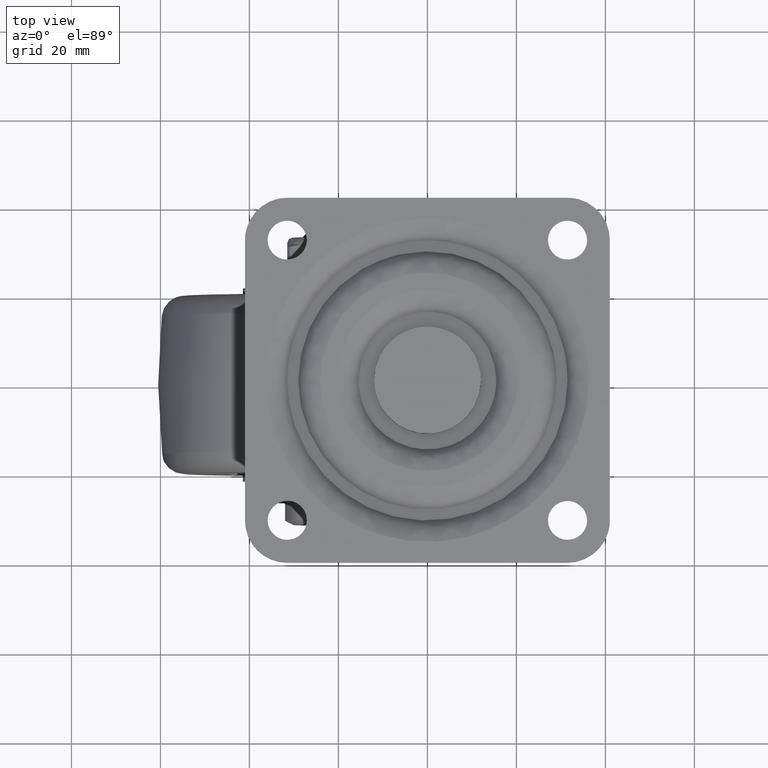
[diagram: clean part render]
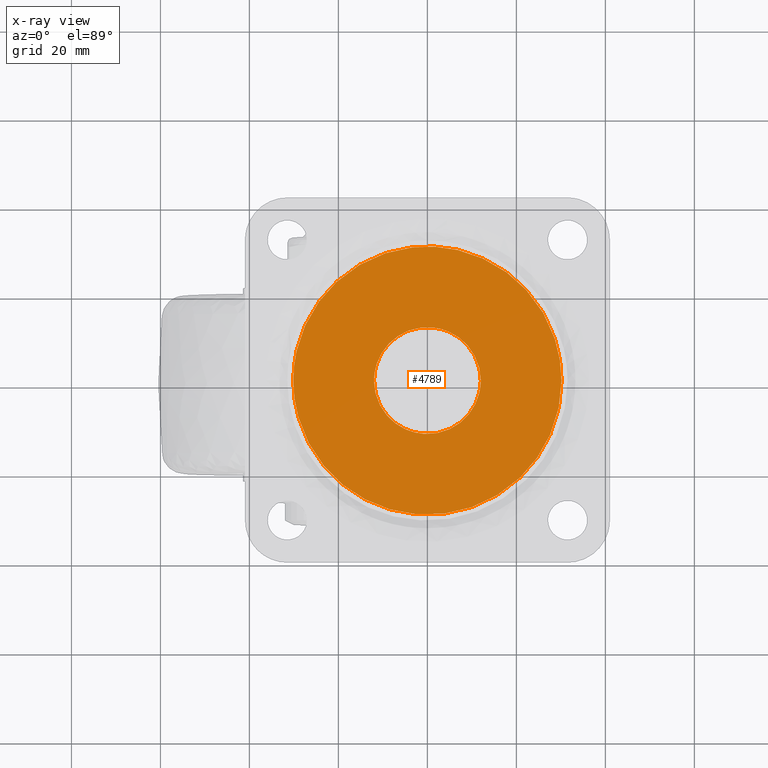
[diagram: x-ray — body ghosted, one internal face saturated and labeled with its STEP entity id]
A machine part, top view, then the same camera in x-ray: the body is ghosted and one INTERNAL B-rep face — a face not visible from any outside direction — is saturated and labeled: STEP entity #4789.
In plain terms, the highlighted face is a freeform B-spline surface patch.
Its self-contained STEP definition (entity closure, byte-faithful):
#3000=CARTESIAN_POINT('',(-0.732576233660404,-11.977617962760240,-6.999999999999901));
#3001=VERTEX_POINT('',#3000);
#3007=CARTESIAN_POINT('',(-12.0,0.0,-6.999999999999901));
#3008=VERTEX_POINT('',#3007);
#3009=CARTESIAN_POINT('',(-12.0,0.0,-6.999999999999901));
#3010=CARTESIAN_POINT('',(-12.0,-11.288478695549964,-6.999999999999900));
#3011=CARTESIAN_POINT('',(-0.732576233660404,-11.977617962760243,-6.999999999999901));
#3019=(BOUNDED_CURVE()B_SPLINE_CURVE(2,(#3009,#3010,#3011),.UNSPECIFIED.,.F.,.U.)B_SPLINE_CURVE_WITH_KNOTS((3,3),(0.500000000000000,0.739333052144890),.UNSPECIFIED.)CURVE()GEOMETRIC_REPRESENTATION_ITEM()RATIONAL_B_SPLINE_CURVE((1.0,0.719603887955342,0.976072234352351))REPRESENTATION_ITEM(''));
#3020=EDGE_CURVE('',#3008,#3001,#3019,.T.);
#3022=CARTESIAN_POINT('',(1.416410815948204,11.916114316356021,-6.999999999999901));
#3023=VERTEX_POINT('',#3022);
#3024=CARTESIAN_POINT('',(1.416410815948204,11.916114316356024,-6.999999999999901));
#3025=CARTESIAN_POINT('',(0.710689435890734,12.000000000000002,-6.999999999999901));
#3026=CARTESIAN_POINT('',(0.0,12.0,-6.999999999999901));
#3027=CARTESIAN_POINT('',(-12.0,12.0,-6.999999999999899));
#3028=CARTESIAN_POINT('',(-12.0,0.0,-6.999999999999901));
#3036=(BOUNDED_CURVE()B_SPLINE_CURVE(2,(#3024,#3025,#3026,#3027,#3028),.UNSPECIFIED.,.F.,.U.)B_SPLINE_CURVE_WITH_KNOTS((3,2,3),(0.229562473513741,0.250000000000000,0.500000000000000),.UNSPECIFIED.)CURVE()GEOMETRIC_REPRESENTATION_ITEM()RATIONAL_B_SPLINE_CURVE((0.956026754184155,0.976055948331417,1.0,0.707106781186548,1.0))REPRESENTATION_ITEM(''));
#3037=EDGE_CURVE('',#3023,#3008,#3036,.T.);
#3081=CARTESIAN_POINT('',(12.0,0.0,-6.999999999999901));
#3082=VERTEX_POINT('',#3081);
#3083=CARTESIAN_POINT('',(12.0,0.0,-6.999999999999901));
#3084=CARTESIAN_POINT('',(11.999999999999998,10.658094311295528,-6.999999999999899));
#3085=CARTESIAN_POINT('',(1.416410815948204,11.916114316356024,-6.999999999999901));
#3093=(BOUNDED_CURVE()B_SPLINE_CURVE(2,(#3083,#3084,#3085),.UNSPECIFIED.,.F.,.U.)B_SPLINE_CURVE_WITH_KNOTS((3,3),(0.0,0.229562473513741),.UNSPECIFIED.)CURVE()GEOMETRIC_REPRESENTATION_ITEM()RATIONAL_B_SPLINE_CURVE((1.0,0.731050832855130,0.956026754184155))REPRESENTATION_ITEM(''));
#3094=EDGE_CURVE('',#3082,#3023,#3093,.T.);
#3096=CARTESIAN_POINT('',(-0.732576233660404,-11.977617962760243,-6.999999999999901));
#3097=CARTESIAN_POINT('',(-0.366630030455014,-12.000000000000002,-6.999999999999901));
#3098=CARTESIAN_POINT('',(0.0,-12.0,-6.999999999999901));
#3099=CARTESIAN_POINT('',(12.0,-12.0,-6.999999999999899));
#3100=CARTESIAN_POINT('',(12.0,0.0,-6.999999999999901));
#3108=(BOUNDED_CURVE()B_SPLINE_CURVE(2,(#3096,#3097,#3098,#3099,#3100),.UNSPECIFIED.,.F.,.U.)B_SPLINE_CURVE_WITH_KNOTS((3,2,3),(0.739333052144890,0.750000000000000,1.0),.UNSPECIFIED.)CURVE()GEOMETRIC_REPRESENTATION_ITEM()RATIONAL_B_SPLINE_CURVE((0.976072234352351,0.987502893231206,1.0,0.707106781186548,1.0))REPRESENTATION_ITEM(''));
#3109=EDGE_CURVE('',#3001,#3082,#3108,.T.);
#4539=CARTESIAN_POINT('',(6.760896579131067,29.378218420385728,-6.999999999999696));
#4540=VERTEX_POINT('',#4539);
#4541=CARTESIAN_POINT('',(30.146134745329402,0.0,-6.999999999999700));
#4542=VERTEX_POINT('',#4541);
#4543=CARTESIAN_POINT('',(6.760896579131067,29.378218420385721,-6.999999999999696));
#4544=CARTESIAN_POINT('',(30.146134745329395,23.996504169676282,-6.999999999999700));
#4545=CARTESIAN_POINT('',(30.146134745329402,0.0,-6.999999999999700));
#4553=(BOUNDED_CURVE()B_SPLINE_CURVE(2,(#4543,#4544,#4545),.UNSPECIFIED.,.F.,.U.)B_SPLINE_CURVE_WITH_KNOTS((3,3),(0.288352912382086,0.500000000000000),.UNSPECIFIED.)CURVE()GEOMETRIC_REPRESENTATION_ITEM()RATIONAL_B_SPLINE_CURVE((0.923920098760861,0.752040013020386,1.0))REPRESENTATION_ITEM(''));
#4554=EDGE_CURVE('',#4540,#4542,#4553,.T.);
#4618=CARTESIAN_POINT('',(-29.378218420385739,6.760896579131069,-6.999999999999696));
#4619=VERTEX_POINT('',#4618);
#4633=CARTESIAN_POINT('',(-30.146134745329402,0.0,-6.999999999999700));
#4634=VERTEX_POINT('',#4633);
#4635=CARTESIAN_POINT('',(-30.146134745329402,0.0,-6.999999999999700));
#4636=CARTESIAN_POINT('',(-30.146134745329402,3.424059035221060,-6.999999999999700));
#4637=CARTESIAN_POINT('',(-29.378218420385739,6.760896579131069,-6.999999999999697));
#4645=(BOUNDED_CURVE()B_SPLINE_CURVE(2,(#4635,#4636,#4637),.UNSPECIFIED.,.F.,.U.)B_SPLINE_CURVE_WITH_KNOTS((3,3),(0.0,0.038352912382086),.UNSPECIFIED.)CURVE()GEOMETRIC_REPRESENTATION_ITEM()RATIONAL_B_SPLINE_CURVE((1.0,0.955066768166162,0.923920098760861))REPRESENTATION_ITEM(''));
#4646=EDGE_CURVE('',#4634,#4619,#4645,.T.);
#4648=CARTESIAN_POINT('',(30.146134745329402,0.0,-6.999999999999700));
#4649=CARTESIAN_POINT('',(30.146134745329398,-30.146134745329398,-6.999999999999701));
#4650=CARTESIAN_POINT('',(0.0,-30.146134745329402,-6.999999999999700));
#4651=CARTESIAN_POINT('',(-30.146134745329398,-30.146134745329398,-6.999999999999701));
#4652=CARTESIAN_POINT('',(-30.146134745329402,0.0,-6.999999999999700));
#4660=(BOUNDED_CURVE()B_SPLINE_CURVE(2,(#4648,#4649,#4650,#4651,#4652),.UNSPECIFIED.,.F.,.U.)B_SPLINE_CURVE_WITH_KNOTS((3,2,3),(0.500000000000000,0.750000000000000,1.0),.UNSPECIFIED.)CURVE()GEOMETRIC_REPRESENTATION_ITEM()RATIONAL_B_SPLINE_CURVE((1.0,0.707106781186547,1.0,0.707106781186547,1.0))REPRESENTATION_ITEM(''));
#4661=EDGE_CURVE('',#4542,#4634,#4660,.T.);
#4683=CARTESIAN_POINT('',(-29.378218420385735,6.760896579131069,-6.999999999999696));
#4684=CARTESIAN_POINT('',(-23.996504169676282,30.146134745329395,-6.999999999999700));
#4685=CARTESIAN_POINT('',(0.0,30.146134745329402,-6.999999999999700));
#4686=CARTESIAN_POINT('',(3.424059035221069,30.146134745329395,-6.999999999999700));
#4687=CARTESIAN_POINT('',(6.760896579131068,29.378218420385728,-6.999999999999696));
#4695=(BOUNDED_CURVE()B_SPLINE_CURVE(2,(#4683,#4684,#4685,#4686,#4687),.UNSPECIFIED.,.F.,.U.)B_SPLINE_CURVE_WITH_KNOTS((3,2,3),(0.038352912382086,0.250000000000000,0.288352912382086),.UNSPECIFIED.)CURVE()GEOMETRIC_REPRESENTATION_ITEM()RATIONAL_B_SPLINE_CURVE((0.923920098760861,0.752040013020386,1.0,0.955066768166162,0.923920098760861))REPRESENTATION_ITEM(''));
#4696=EDGE_CURVE('',#4619,#4540,#4695,.T.);
#4772=CARTESIAN_POINT('',(-33.157734055510382,-33.157522683072621,-6.999999999999910));
#4773=CARTESIAN_POINT('',(33.157735133620172,-33.157522683072621,-6.999999999999910));
#4774=CARTESIAN_POINT('',(-33.157734055510382,33.153292080923777,-6.999999999999910));
#4775=CARTESIAN_POINT('',(33.157735133620172,33.153292080923777,-6.999999999999910));
#4776=B_SPLINE_SURFACE_WITH_KNOTS('',1,1,((#4772,#4774),(#4773,#4775)),.UNSPECIFIED.,.F.,.F.,.U.,(2,2),(2,2),(0.0,66.315469189130539),(0.0,66.310814763996405),.UNSPECIFIED.);
#4777=ORIENTED_EDGE('',*,*,#4646,.T.);
#4778=ORIENTED_EDGE('',*,*,#4696,.T.);
#4779=ORIENTED_EDGE('',*,*,#4554,.T.);
#4780=ORIENTED_EDGE('',*,*,#4661,.T.);
#4781=EDGE_LOOP('',(#4777,#4778,#4779,#4780));
#4782=FACE_OUTER_BOUND('',#4781,.T.);
#4783=ORIENTED_EDGE('',*,*,#3020,.T.);
#4784=ORIENTED_EDGE('',*,*,#3109,.T.);
#4785=ORIENTED_EDGE('',*,*,#3094,.T.);
#4786=ORIENTED_EDGE('',*,*,#3037,.T.);
#4787=EDGE_LOOP('',(#4783,#4784,#4785,#4786));
#4788=FACE_BOUND('',#4787,.T.);
#4789=ADVANCED_FACE('',(#4782,#4788),#4776,.F.);